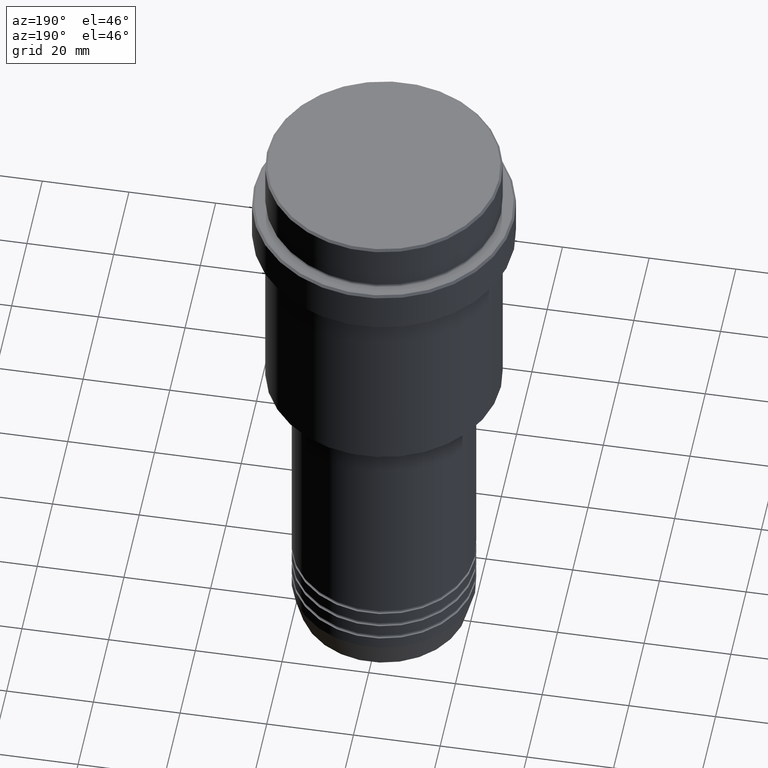
[diagram: clean part render]
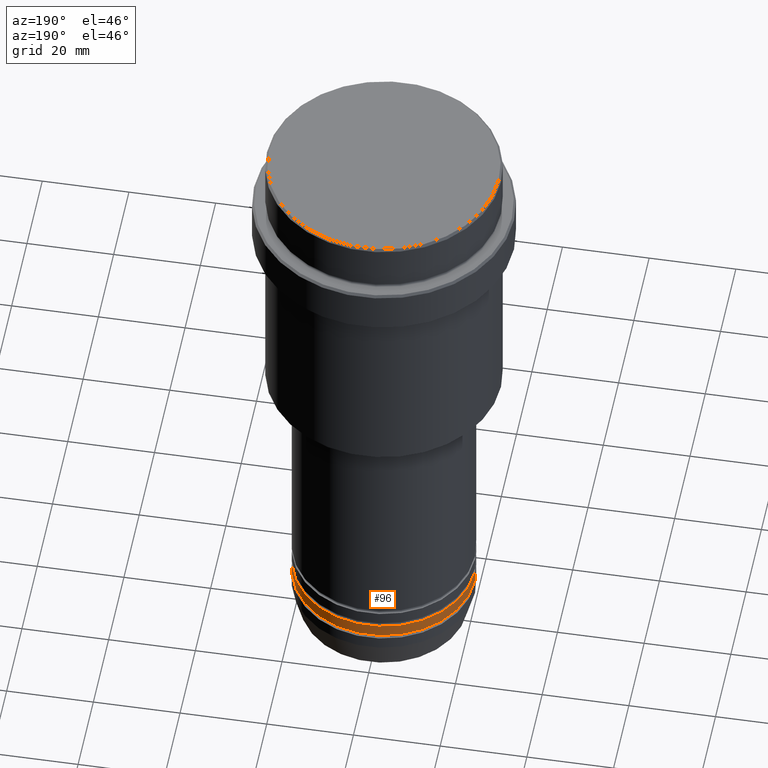
[diagram: same view with one face highlighted and labeled with its STEP entity id]
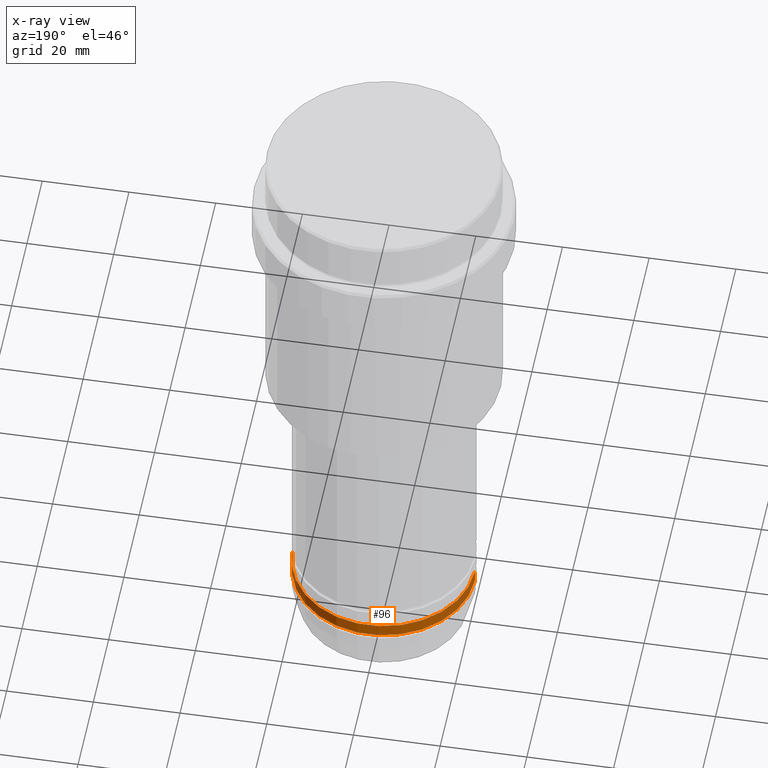
[diagram: x-ray of the same camera — body ghosted, the highlighted face saturated]
A machine part, auxiliary view. The second image highlights one B-rep face of the part: STEP entity #96.
The next image is the same camera in x-ray: the body ghosted, the highlighted face saturated — about 0% of this face is hidden behind the body in this view.
In plain terms, the highlighted cylindrical surface (partial cylindrical patch) has radius 21 mm, axis along (-0, -0, 1).
Its self-contained STEP definition (entity closure, byte-faithful):
#11 = CARTESIAN_POINT ( 'NONE',  ( 0.000000000000000000, 0.000000000000000000, -128.9999999999998863 ) ) ;
#62 = CARTESIAN_POINT ( 'NONE',  ( -21.00000000000000000, 2.571758278209441661E-15, 0.000000000000000000 ) ) ;
#88 = DIRECTION ( 'NONE',  ( -0.000000000000000000, -0.000000000000000000, 1.000000000000000000 ) ) ;
#96 = ADVANCED_FACE ( 'NONE', ( #243 ), #461, .T. ) ;
#107 = AXIS2_PLACEMENT_3D ( 'NONE', #386, #368, #803 ) ;
#136 = CARTESIAN_POINT ( 'NONE',  ( 0.000000000000000000, 0.000000000000000000, 0.000000000000000000 ) ) ;
#140 = CARTESIAN_POINT ( 'NONE',  ( -21.00000000000000000, 2.571758278209441661E-15, -131.9999999999998863 ) ) ;
#243 = FACE_OUTER_BOUND ( 'NONE', #1365, .T. ) ;
#264 = VECTOR ( 'NONE', #88, 1000.000000000000000 ) ;
#265 = CARTESIAN_POINT ( 'NONE',  ( 21.00000000000000000, 0.000000000000000000, -131.9999999999998863 ) ) ;
#338 = AXIS2_PLACEMENT_3D ( 'NONE', #136, #691, #575 ) ;
#368 = DIRECTION ( 'NONE',  ( -0.000000000000000000, -0.000000000000000000, 1.000000000000000000 ) ) ;
#386 = CARTESIAN_POINT ( 'NONE',  ( 0.000000000000000000, 0.000000000000000000, -131.9999999999998863 ) ) ;
#422 = ORIENTED_EDGE ( 'NONE', *, *, #610, .F. ) ;
#434 = CIRCLE ( 'NONE', #894, 21.00000000000000000 ) ;
#460 = DIRECTION ( 'NONE',  ( -0.000000000000000000, -0.000000000000000000, 1.000000000000000000 ) ) ;
#461 = CYLINDRICAL_SURFACE ( 'NONE', #338, 21.00000000000000000 ) ;
#514 = VERTEX_POINT ( 'NONE', #618 ) ;
#554 = EDGE_CURVE ( 'NONE', #760, #1118, #567, .T. ) ;
#567 = CIRCLE ( 'NONE', #107, 21.00000000000000000 ) ;
#575 = DIRECTION ( 'NONE',  ( 1.000000000000000000, 0.000000000000000000, 0.000000000000000000 ) ) ;
#610 = EDGE_CURVE ( 'NONE', #760, #514, #1301, .T. ) ;
#618 = CARTESIAN_POINT ( 'NONE',  ( 21.00000000000000000, 0.000000000000000000, -128.9999999999998863 ) ) ;
#673 = VERTEX_POINT ( 'NONE', #1221 ) ;
#691 = DIRECTION ( 'NONE',  ( -0.000000000000000000, -0.000000000000000000, 1.000000000000000000 ) ) ;
#738 = CARTESIAN_POINT ( 'NONE',  ( 21.00000000000000000, 0.000000000000000000, 0.000000000000000000 ) ) ;
#741 = LINE ( 'NONE', #62, #895 ) ;
#756 = ORIENTED_EDGE ( 'NONE', *, *, #1245, .T. ) ;
#760 = VERTEX_POINT ( 'NONE', #265 ) ;
#803 = DIRECTION ( 'NONE',  ( 1.000000000000000000, 0.000000000000000000, 0.000000000000000000 ) ) ;
#894 = AXIS2_PLACEMENT_3D ( 'NONE', #11, #460, #897 ) ;
#895 = VECTOR ( 'NONE', #1074, 1000.000000000000000 ) ;
#897 = DIRECTION ( 'NONE',  ( 1.000000000000000000, 0.000000000000000000, 0.000000000000000000 ) ) ;
#981 = EDGE_CURVE ( 'NONE', #514, #673, #434, .T. ) ;
#1074 = DIRECTION ( 'NONE',  ( -0.000000000000000000, -0.000000000000000000, 1.000000000000000000 ) ) ;
#1118 = VERTEX_POINT ( 'NONE', #140 ) ;
#1221 = CARTESIAN_POINT ( 'NONE',  ( -21.00000000000000000, 2.571758278209441661E-15, -128.9999999999998863 ) ) ;
#1240 = ORIENTED_EDGE ( 'NONE', *, *, #554, .T. ) ;
#1243 = ORIENTED_EDGE ( 'NONE', *, *, #981, .F. ) ;
#1245 = EDGE_CURVE ( 'NONE', #1118, #673, #741, .T. ) ;
#1301 = LINE ( 'NONE', #738, #264 ) ;
#1365 = EDGE_LOOP ( 'NONE', ( #1240, #756, #1243, #422 ) ) ;